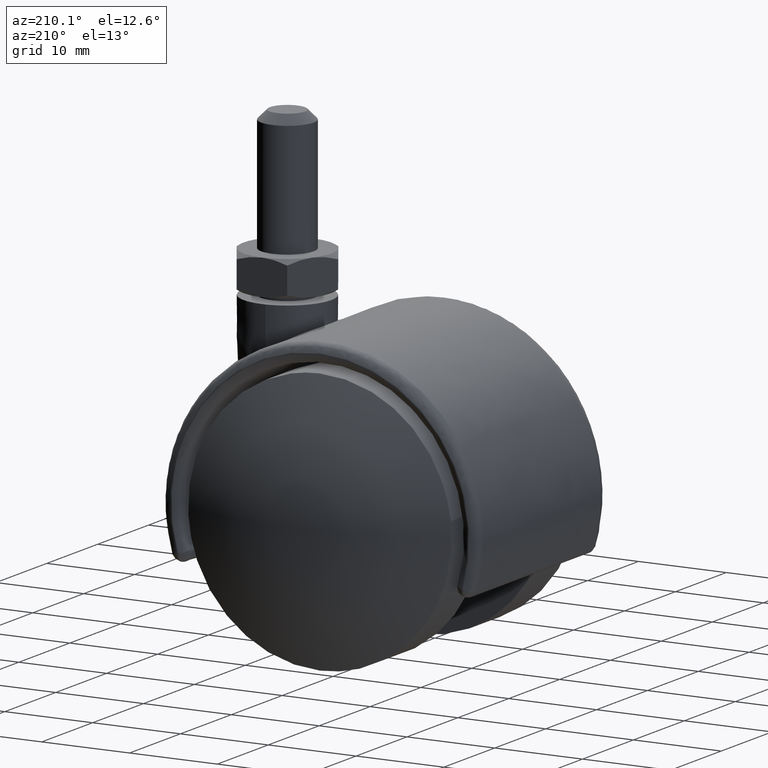
[diagram: clean part render]
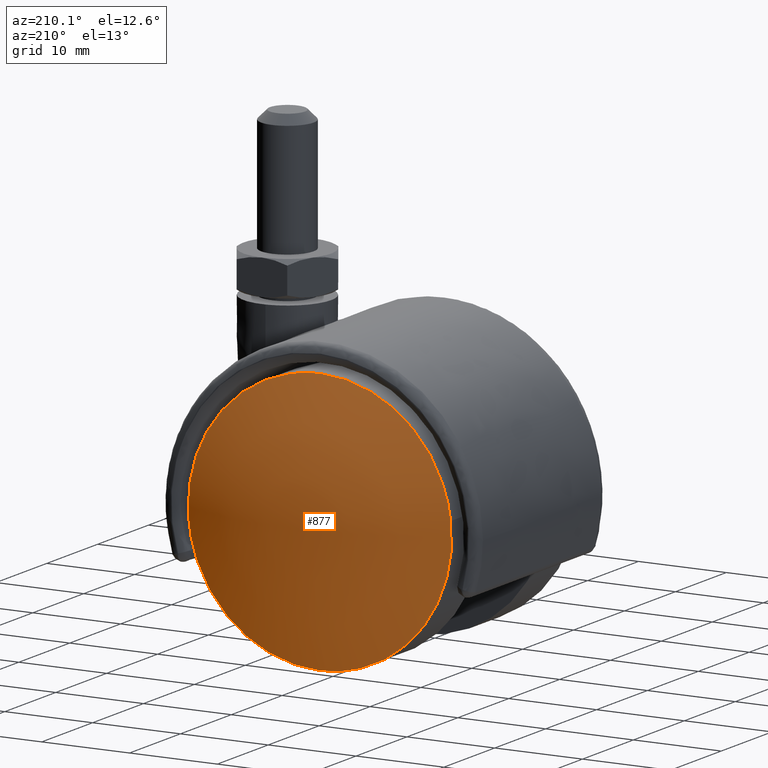
[diagram: same view with one face highlighted and labeled with its STEP entity id]
A machine part, auxiliary view. The second image highlights one B-rep face of the part: STEP entity #877.
In plain terms, the highlighted face is a freeform B-spline surface patch.
Its self-contained STEP definition (entity closure, byte-faithful):
#457=CARTESIAN_POINT('',(14.895143492216040,-12.600000084209880,1.770507794074311));
#458=VERTEX_POINT('',#457);
#464=CARTESIAN_POINT('',(0.0,-12.600000084209880,-14.999999889005201));
#465=VERTEX_POINT('',#464);
#466=CARTESIAN_POINT('',(14.895143492216043,-12.600000084209883,1.770507794074311));
#467=CARTESIAN_POINT('',(14.999999889005203,-12.600000084209880,0.888358900015511));
#468=CARTESIAN_POINT('',(14.999999889005201,-12.600000084209880,0.0));
#469=CARTESIAN_POINT('',(14.999999889005192,-12.600000084209881,-14.999999889005192));
#470=CARTESIAN_POINT('',(0.0,-12.600000084209880,-14.999999889005201));
#478=(BOUNDED_CURVE()B_SPLINE_CURVE(2,(#466,#467,#468,#469,#470),.UNSPECIFIED.,.F.,.U.)B_SPLINE_CURVE_WITH_KNOTS((3,2,3),(0.229562538369963,0.250000000000000,0.500000000000000),.UNSPECIFIED.)CURVE()GEOMETRIC_REPRESENTATION_ITEM()RATIONAL_B_SPLINE_CURVE((0.956026881305045,0.976056024315209,1.0,0.707106781186547,1.0))REPRESENTATION_ITEM(''));
#479=EDGE_CURVE('',#458,#465,#478,.T.);
#481=CARTESIAN_POINT('',(-14.972022513789369,-12.600000084209880,-0.915717941889287));
#482=VERTEX_POINT('',#481);
#483=CARTESIAN_POINT('',(0.0,-12.600000084209880,-14.999999889005201));
#484=CARTESIAN_POINT('',(-14.110600479331318,-12.600000084209881,-14.999999889005190));
#485=CARTESIAN_POINT('',(-14.972022513789366,-12.600000084209876,-0.915717941889287));
#493=(BOUNDED_CURVE()B_SPLINE_CURVE(2,(#483,#484,#485),.UNSPECIFIED.,.F.,.U.)B_SPLINE_CURVE_WITH_KNOTS((3,3),(0.500000000000000,0.739333079171317),.UNSPECIFIED.)CURVE()GEOMETRIC_REPRESENTATION_ITEM()RATIONAL_B_SPLINE_CURVE((1.0,0.719603856291912,0.976072292275183))REPRESENTATION_ITEM(''));
#494=EDGE_CURVE('',#465,#482,#493,.T.);
#568=CARTESIAN_POINT('',(0.0,-12.600000084209880,14.999999889005201));
#569=VERTEX_POINT('',#568);
#570=CARTESIAN_POINT('',(-14.972022513789366,-12.600000084209876,-0.915717941889287));
#571=CARTESIAN_POINT('',(-14.999999889005201,-12.600000084209883,-0.458286358837879));
#572=CARTESIAN_POINT('',(-14.999999889005201,-12.600000084209880,0.0));
#573=CARTESIAN_POINT('',(-14.999999889005192,-12.600000084209881,14.999999889005192));
#574=CARTESIAN_POINT('',(0.0,-12.600000084209880,14.999999889005201));
#582=(BOUNDED_CURVE()B_SPLINE_CURVE(2,(#570,#571,#572,#573,#574),.UNSPECIFIED.,.F.,.U.)B_SPLINE_CURVE_WITH_KNOTS((3,2,3),(0.739333079171317,0.750000000000000,1.0),.UNSPECIFIED.)CURVE()GEOMETRIC_REPRESENTATION_ITEM()RATIONAL_B_SPLINE_CURVE((0.976072292275183,0.987502924894635,1.0,0.707106781186547,1.0))REPRESENTATION_ITEM(''));
#583=EDGE_CURVE('',#482,#569,#582,.T.);
#585=CARTESIAN_POINT('',(0.0,-12.600000084209880,14.999999889005201));
#586=CARTESIAN_POINT('',(13.322622939179812,-12.600000084209880,14.999999889005199));
#587=CARTESIAN_POINT('',(14.895143492216043,-12.600000084209883,1.770507794074311));
#595=(BOUNDED_CURVE()B_SPLINE_CURVE(2,(#585,#586,#587),.UNSPECIFIED.,.F.,.U.)B_SPLINE_CURVE_WITH_KNOTS((3,3),(0.0,0.229562538369963),.UNSPECIFIED.)CURVE()GEOMETRIC_REPRESENTATION_ITEM()RATIONAL_B_SPLINE_CURVE((1.0,0.731050756871339,0.956026881305045))REPRESENTATION_ITEM(''));
#596=EDGE_CURVE('',#569,#458,#595,.T.);
#847=CARTESIAN_POINT('',(-15.137534617628353,-7.842117588079479,-15.137869004065614));
#848=CARTESIAN_POINT('',(-8.140930142423597,-11.843708561115639,-16.282219949309724));
#849=CARTESIAN_POINT('',(8.140975587276166,-11.843708561115648,-16.282219949309724));
#850=CARTESIAN_POINT('',(15.137607241362698,-7.842076052013736,-15.137857125831077));
#851=CARTESIAN_POINT('',(-16.281914663477110,-11.843898717677604,-8.141137164570440));
#852=CARTESIAN_POINT('',(-8.806704561082368,-16.499999999999979,-8.806899100195661));
#853=CARTESIAN_POINT('',(8.806753722466061,-16.499999999999989,-8.806899100195661));
#854=CARTESIAN_POINT('',(16.281991811631180,-11.843850664071709,-8.141130293529685));
#855=CARTESIAN_POINT('',(-16.281914663477110,-11.843898717677604,8.141137459667867));
#856=CARTESIAN_POINT('',(-8.806704561082368,-16.499999999999979,8.806899419425422));
#857=CARTESIAN_POINT('',(8.806753722466061,-16.499999999999989,8.806899419425422));
#858=CARTESIAN_POINT('',(16.281991811631180,-11.843850664071709,8.141130588626863));
#859=CARTESIAN_POINT('',(-15.137534540497114,-7.842117318359347,15.137869475645473));
#860=CARTESIAN_POINT('',(-8.140930097806836,-11.843708249075029,16.282220450267111));
#861=CARTESIAN_POINT('',(8.140975542659158,-11.843708249075046,16.282220450267111));
#862=CARTESIAN_POINT('',(15.137607164231150,-7.842075782294026,15.137857597410628));
#870=(BOUNDED_SURFACE()B_SPLINE_SURFACE(2,2,((#847,#851,#855,#859),(#848,#852,#856,#860),(#849,#853,#857,#861),(#850,#854,#858,#862)),.UNSPECIFIED.,.F.,.F.,.U.)B_SPLINE_SURFACE_WITH_KNOTS((3,1,3),(3,1,3),(0.0,16.921494966008261,33.843084392333850),(0.0,16.921868759929001,33.843738133236677),.UNSPECIFIED.)GEOMETRIC_REPRESENTATION_ITEM()RATIONAL_B_SPLINE_SURFACE(((1.163558635344297,1.081777511196171,1.081777511196171,1.163558641273051),(1.081781124148126,1.0,1.0,1.081781130076880),(1.081781124148126,1.0,1.0,1.081781130076880),(1.163559548354788,1.081778424206662,1.081778424206662,1.163559554283542)))REPRESENTATION_ITEM('')SURFACE());
#871=ORIENTED_EDGE('',*,*,#583,.F.);
#872=ORIENTED_EDGE('',*,*,#494,.F.);
#873=ORIENTED_EDGE('',*,*,#479,.F.);
#874=ORIENTED_EDGE('',*,*,#596,.F.);
#875=EDGE_LOOP('',(#871,#872,#873,#874));
#876=FACE_OUTER_BOUND('',#875,.T.);
#877=ADVANCED_FACE('',(#876),#870,.T.);